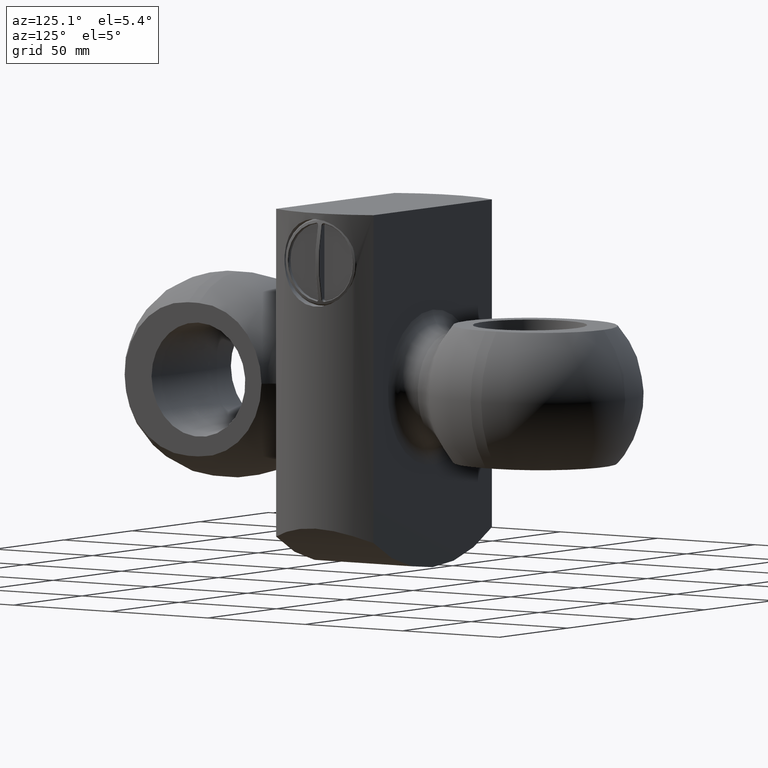
[diagram: clean part render]
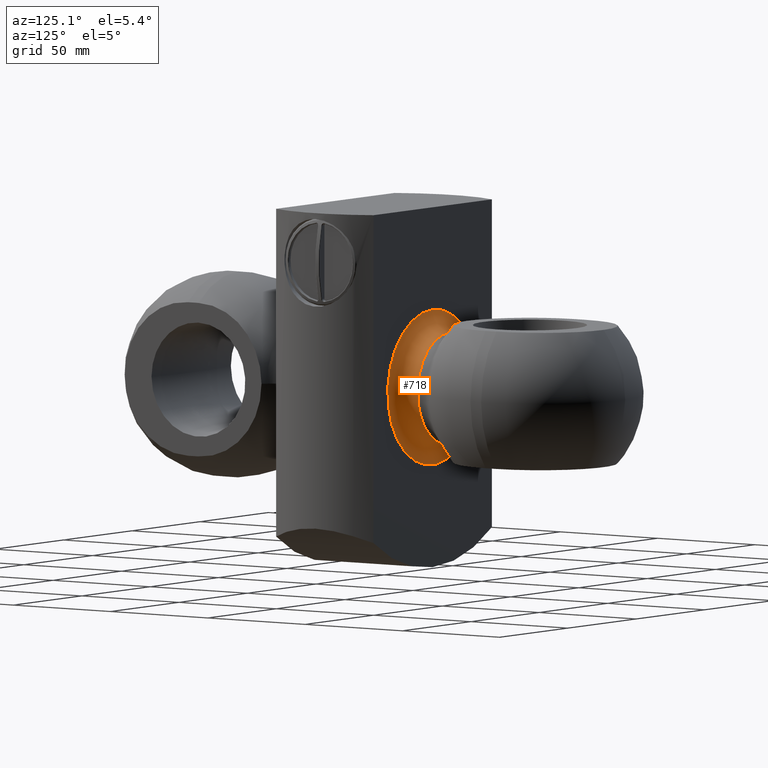
[diagram: same view with one face highlighted and labeled with its STEP entity id]
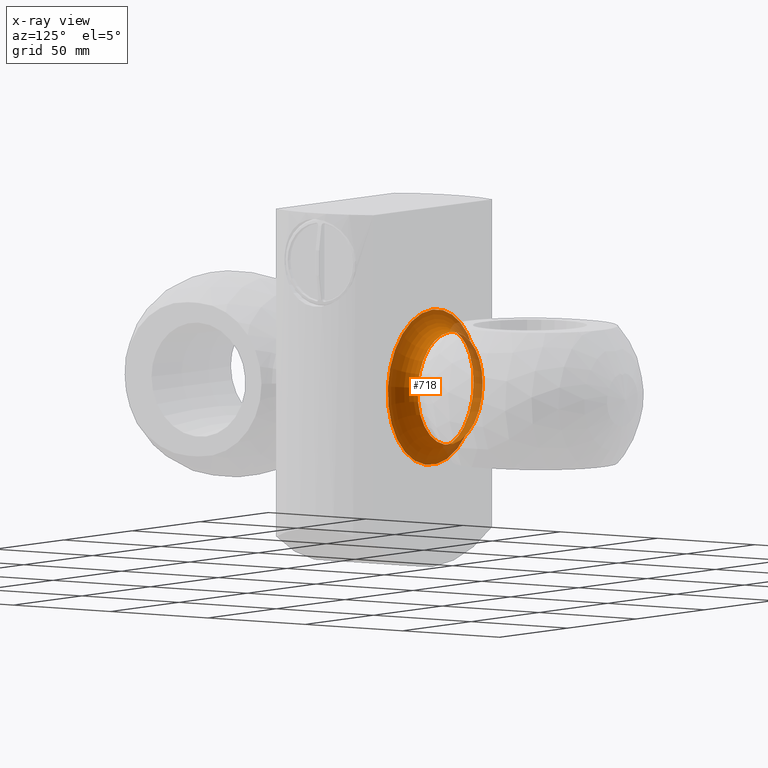
[diagram: x-ray of the same camera — body ghosted, the highlighted face saturated]
A machine part, auxiliary view. The second image highlights one B-rep face of the part: STEP entity #718.
The next image is the same camera in x-ray: the body ghosted, the highlighted face saturated — about 18% of this face is hidden behind the body in this view.
In plain terms, the highlighted toroidal blend (fillet) surface has major radius 32.8 mm and minor (blend) radius 9 mm.
Its self-contained STEP definition (entity closure, byte-faithful):
#41=TOROIDAL_SURFACE('',#855,32.8,9.);
#110=FACE_OUTER_BOUND('',#158,.T.);
#158=EDGE_LOOP('',(#641,#642,#643,#644,#645,#646));
#282=CIRCLE('',#853,23.8);
#283=CIRCLE('',#854,23.8);
#284=CIRCLE('',#856,9.);
#285=CIRCLE('',#857,32.8);
#286=CIRCLE('',#858,32.8);
#353=VERTEX_POINT('',#1576);
#354=VERTEX_POINT('',#1578);
#355=VERTEX_POINT('',#1582);
#356=VERTEX_POINT('',#1584);
#452=EDGE_CURVE('',#354,#353,#282,.T.);
#453=EDGE_CURVE('',#353,#354,#283,.T.);
#454=EDGE_CURVE('',#354,#355,#284,.T.);
#455=EDGE_CURVE('',#355,#356,#285,.T.);
#456=EDGE_CURVE('',#356,#355,#286,.T.);
#641=ORIENTED_EDGE('',*,*,#453,.T.);
#642=ORIENTED_EDGE('',*,*,#454,.T.);
#643=ORIENTED_EDGE('',*,*,#455,.T.);
#644=ORIENTED_EDGE('',*,*,#456,.T.);
#645=ORIENTED_EDGE('',*,*,#454,.F.);
#646=ORIENTED_EDGE('',*,*,#452,.T.);
#718=ADVANCED_FACE('',(#110),#41,.F.);
#853=AXIS2_PLACEMENT_3D('',#1579,#1079,#1080);
#854=AXIS2_PLACEMENT_3D('',#1580,#1081,#1082);
#855=AXIS2_PLACEMENT_3D('',#1581,#1083,#1084);
#856=AXIS2_PLACEMENT_3D('',#1583,#1085,#1086);
#857=AXIS2_PLACEMENT_3D('',#1585,#1087,#1088);
#858=AXIS2_PLACEMENT_3D('',#1586,#1089,#1090);
#1079=DIRECTION('center_axis',(0.,-1.,0.));
#1080=DIRECTION('ref_axis',(1.,0.,0.));
#1081=DIRECTION('center_axis',(0.,-1.,0.));
#1082=DIRECTION('ref_axis',(1.,0.,0.));
#1083=DIRECTION('center_axis',(0.,-1.,0.));
#1084=DIRECTION('ref_axis',(0.,0.,-1.));
#1085=DIRECTION('center_axis',(-1.,0.,-1.22464679914735E-16));
#1086=DIRECTION('ref_axis',(-1.22464679914735E-16,0.,1.));
#1087=DIRECTION('center_axis',(0.,1.,0.));
#1088=DIRECTION('ref_axis',(1.,0.,0.));
#1089=DIRECTION('center_axis',(0.,1.,0.));
#1090=DIRECTION('ref_axis',(1.,0.,0.));
#1576=CARTESIAN_POINT('',(-23.8,34.,-2.9146593819707E-15));
#1578=CARTESIAN_POINT('',(-2.9146593819707E-15,34.,23.8));
#1579=CARTESIAN_POINT('Origin',(0.,34.,0.));
#1580=CARTESIAN_POINT('Origin',(0.,34.,0.));
#1581=CARTESIAN_POINT('Origin',(0.,34.,0.));
#1582=CARTESIAN_POINT('',(-4.01684150120332E-15,25.,32.8));
#1583=CARTESIAN_POINT('Origin',(-4.01684150120332E-15,34.,32.8));
#1584=CARTESIAN_POINT('',(-32.8,25.,4.01684150120332E-15));
#1585=CARTESIAN_POINT('Origin',(0.,25.,0.));
#1586=CARTESIAN_POINT('Origin',(0.,25.,0.));